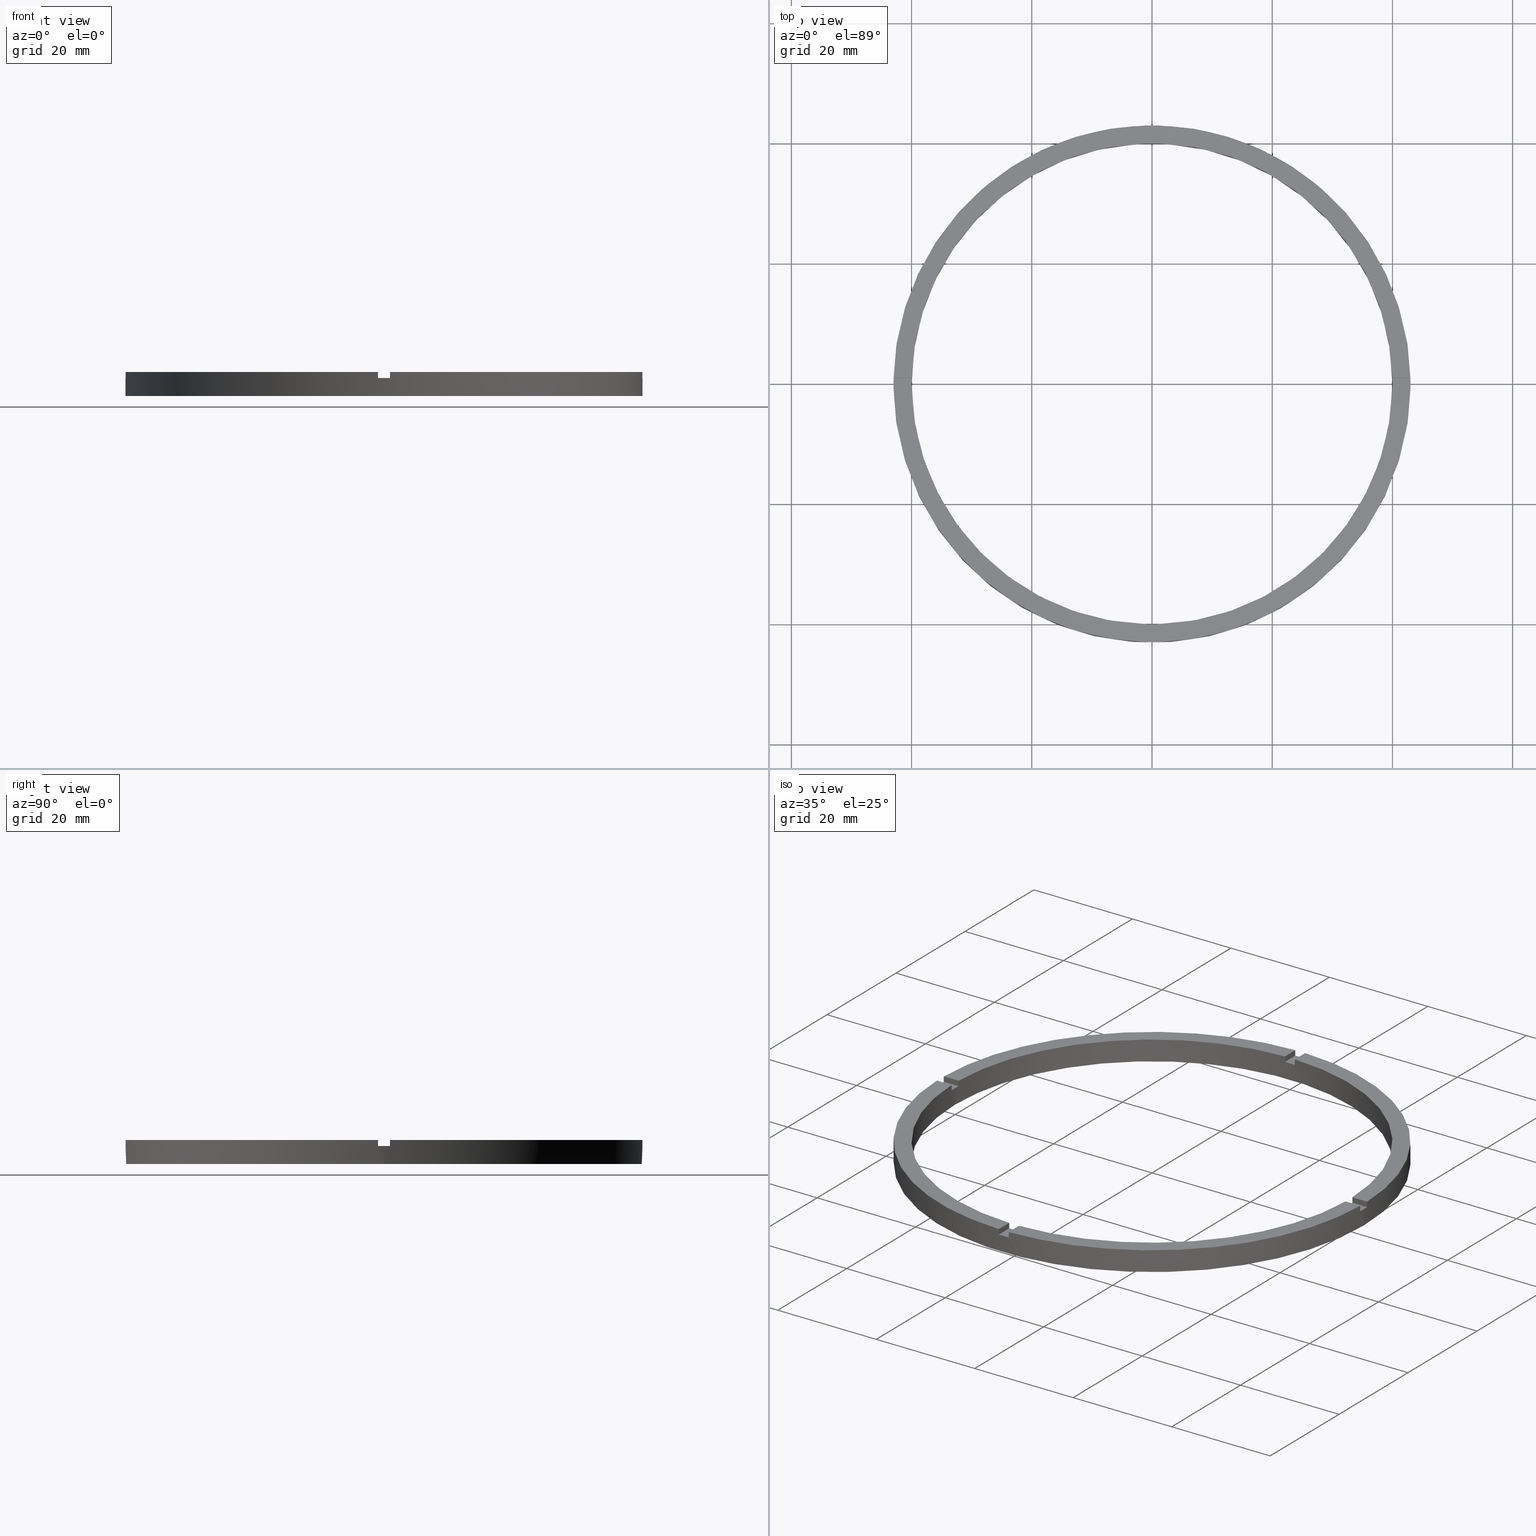
[diagram: canonical four-view strip — front | top / right | iso, engineering-drawing reading convention]
A machine part, canonical four-view strip (front | top / right | iso — engineering-drawing reading convention). The complete STEP part file that produces these views, byte-faithful:
ISO-10303-21;
HEADER;
FILE_DESCRIPTION (( 'STEP AP203' ),
    '1' );
FILE_NAME ('514176.step',
    '2024-12-26T02:44:57',
    ( 'MSI' ),
    ( '' ),
    'SwSTEP 2.0',
    'SolidWorks 2020',
    '' );
FILE_SCHEMA (( 'CONFIG_CONTROL_DESIGN' ));
ENDSEC;

DATA;
#1 = PERSON_AND_ORGANIZATION ( #390, #523 ) ;
#2 = ORIENTED_EDGE ( 'NONE', *, *, #142, .T. ) ;
#3 = APPROVAL_STATUS ( 'not_yet_approved' ) ;
#4 = VERTEX_POINT ( 'NONE', #494 ) ;
#5 = AXIS2_PLACEMENT_3D ( 'NONE', #260, #135, #87 ) ;
#6 = APPROVAL_PERSON_ORGANIZATION ( #1, #676, #672 ) ;
#7 = EDGE_CURVE ( 'NONE', #349, #636, #596, .T. ) ;
#8 = ORIENTED_EDGE ( 'NONE', *, *, #49, .T. ) ;
#9 = CC_DESIGN_DATE_AND_TIME_ASSIGNMENT ( #273, #326, ( #564 ) ) ;
#10 = APPROVAL_DATE_TIME ( #271, #676 ) ;
#11 = ORIENTED_EDGE ( 'NONE', *, *, #387, .T. ) ;
#12 = CARTESIAN_POINT ( 'NONE',  ( 32.99999999999997158, -1.000000000000157208, 3.000000000000000000 ) ) ;
#13 = ORIENTED_EDGE ( 'NONE', *, *, #269, .T. ) ;
#14 = DIRECTION ( 'NONE',  ( 0.000000000000000000, 0.000000000000000000, 1.000000000000000000 ) ) ;
#15 = EDGE_LOOP ( 'NONE', ( #719, #511 ) ) ;
#16 = CIRCLE ( 'NONE', #645, 40.00000000000000000 ) ;
#17 = AXIS2_PLACEMENT_3D ( 'NONE', #772, #464, #77 ) ;
#18 = VECTOR ( 'NONE', #534, 1000.000000000000000 ) ;
#19 = CIRCLE ( 'NONE', #274, 40.00000000000000000 ) ;
#20 = DESIGN_CONTEXT ( 'detailed design', #435, 'design' ) ;
#21 = CARTESIAN_POINT ( 'NONE',  ( 32.99999999999997158, -1.000000000000157208, 4.000000000000000000 ) ) ;
#22 = CIRCLE ( 'NONE', #212, 42.99999999999998579 ) ;
#23 = CARTESIAN_POINT ( 'NONE',  ( 0.000000000000000000, 0.000000000000000000, 0.000000000000000000 ) ) ;
#24 = EDGE_LOOP ( 'NONE', ( #275, #700 ) ) ;
#25 = FACE_OUTER_BOUND ( 'NONE', #268, .T. ) ;
#26 = VERTEX_POINT ( 'NONE', #139 ) ;
#27 = EDGE_CURVE ( 'NONE', #91, #546, #38, .T. ) ;
#28 = CARTESIAN_POINT ( 'NONE',  ( 0.000000000000000000, 0.000000000000000000, 3.000000000000000000 ) ) ;
#29 = CIRCLE ( 'NONE', #515, 42.99999999999998579 ) ;
#30 = DATE_TIME_ROLE ( 'creation_date' ) ;
#31 = ORIENTED_EDGE ( 'NONE', *, *, #438, .T. ) ;
#32 = AXIS2_PLACEMENT_3D ( 'NONE', #557, #453, #159 ) ;
#33 = FACE_OUTER_BOUND ( 'NONE', #554, .T. ) ;
#34 = ORIENTED_EDGE ( 'NONE', *, *, #679, .F. ) ;
#35 = ORIENTED_EDGE ( 'NONE', *, *, #455, .F. ) ;
#36 = VECTOR ( 'NONE', #108, 1000.000000000000000 ) ;
#37 = LINE ( 'NONE', #610, #40 ) ;
#38 = LINE ( 'NONE', #647, #60 ) ;
#39 = CIRCLE ( 'NONE', #17, 40.00000000000000000 ) ;
#40 = VECTOR ( 'NONE', #615, 1000.000000000000000 ) ;
#41 = VERTEX_POINT ( 'NONE', #431 ) ;
#42 = FACE_OUTER_BOUND ( 'NONE', #695, .T. ) ;
#43 = VECTOR ( 'NONE', #657, 1000.000000000000000 ) ;
#44 = FACE_OUTER_BOUND ( 'NONE', #283, .T. ) ;
#45 = LINE ( 'NONE', #739, #577 ) ;
#46 = ADVANCED_FACE ( 'NONE', ( #44 ), #264, .T. ) ;
#47 = DIRECTION ( 'NONE',  ( 0.000000000000000000, 0.000000000000000000, 1.000000000000000000 ) ) ;
#48 = CIRCLE ( 'NONE', #403, 42.99999999999998579 ) ;
#49 = EDGE_CURVE ( 'NONE', #522, #262, #579, .T. ) ;
#50 = CARTESIAN_POINT ( 'NONE',  ( 0.9999999999999740208, 32.99999999999997868, 3.000000000000000000 ) ) ;
#51 = CYLINDRICAL_SURFACE ( 'NONE', #437, 42.99999999999998579 ) ;
#52 = DIRECTION ( 'NONE',  ( 0.000000000000000000, 0.000000000000000000, 1.000000000000000000 ) ) ;
#53 = FACE_OUTER_BOUND ( 'NONE', #632, .T. ) ;
#54 = CIRCLE ( 'NONE', #562, 40.00000000000000000 ) ;
#55 = PLANE ( 'NONE',  #369 ) ;
#56 = CYLINDRICAL_SURFACE ( 'NONE', #616, 42.99999999999998579 ) ;
#57 = ORIENTED_EDGE ( 'NONE', *, *, #78, .T. ) ;
#58 = EDGE_LOOP ( 'NONE', ( #221, #231, #720, #573 ) ) ;
#59 = LINE ( 'NONE', #625, #586 ) ;
#60 = VECTOR ( 'NONE', #173, 1000.000000000000000 ) ;
#61 = VECTOR ( 'NONE', #771, 1000.000000000000000 ) ;
#62 = DIRECTION ( 'NONE',  ( 0.000000000000000000, 0.000000000000000000, 1.000000000000000000 ) ) ;
#63 = CARTESIAN_POINT ( 'NONE',  ( 42.98837052040934026, 0.9999999999998434586, 4.000000000000000000 ) ) ;
#64 = AXIS2_PLACEMENT_3D ( 'NONE', #354, #164, #371 ) ;
#65 = ORIENTED_EDGE ( 'NONE', *, *, #116, .F. ) ;
#66 = CC_DESIGN_SECURITY_CLASSIFICATION ( #564, ( #409 ) ) ;
#67 = VECTOR ( 'NONE', #216, 1000.000000000000000 ) ;
#68 = LINE ( 'NONE', #662, #67 ) ;
#69 = CARTESIAN_POINT ( 'NONE',  ( 0.000000000000000000, 0.000000000000000000, 0.000000000000000000 ) ) ;
#70 = DIRECTION ( 'NONE',  ( -0.000000000000000000, -0.000000000000000000, -1.000000000000000000 ) ) ;
#71 = PLANE ( 'NONE',  #471 ) ;
#72 = LINE ( 'NONE', #624, #312 ) ;
#73 = FACE_OUTER_BOUND ( 'NONE', #524, .T. ) ;
#74 = AXIS2_PLACEMENT_3D ( 'NONE', #28, #401, #440 ) ;
#75 = EDGE_CURVE ( 'NONE', #499, #636, #582, .T. ) ;
#76 = VECTOR ( 'NONE', #360, 1000.000000000000000 ) ;
#77 = DIRECTION ( 'NONE',  ( 1.000000000000000000, 0.000000000000000000, 0.000000000000000000 ) ) ;
#78 = EDGE_CURVE ( 'NONE', #246, #109, #601, .T. ) ;
#79 = VECTOR ( 'NONE', #153, 1000.000000000000000 ) ;
#80 = FACE_OUTER_BOUND ( 'NONE', #765, .T. ) ;
#81 = LINE ( 'NONE', #83, #332 ) ;
#82 = VECTOR ( 'NONE', #653, 1000.000000000000000 ) ;
#83 = CARTESIAN_POINT ( 'NONE',  ( -40.00000000000000000, 0.000000000000000000, 4.000000000000000000 ) ) ;
#84 = LINE ( 'NONE', #162, #82 ) ;
#85 = EDGE_CURVE ( 'NONE', #4, #773, #608, .T. ) ;
#86 = PLANE ( 'NONE',  #110 ) ;
#87 = DIRECTION ( 'NONE',  ( 1.000000000000000000, 0.000000000000000000, -0.000000000000000000 ) ) ;
#88 = VERTEX_POINT ( 'NONE', #478 ) ;
#89 = CARTESIAN_POINT ( 'NONE',  ( 39.98749804626441318, 0.9999999999998432365, 4.000000000000000000 ) ) ;
#90 = UNCERTAINTY_MEASURE_WITH_UNIT (LENGTH_MEASURE( 1.000000000000000082E-05 ), #253, 'distance_accuracy_value', 'NONE');
#91 = VERTEX_POINT ( 'NONE', #571 ) ;
#92 =( NAMED_UNIT ( * ) SI_UNIT ( $, .STERADIAN. ) SOLID_ANGLE_UNIT ( ) );
#93 = VERTEX_POINT ( 'NONE', #637 ) ;
#94 = EDGE_CURVE ( 'NONE', #91, #522, #330, .T. ) ;
#95 = ORIENTED_EDGE ( 'NONE', *, *, #485, .T. ) ;
#96 = ORIENTED_EDGE ( 'NONE', *, *, #617, .F. ) ;
#97 = ORIENTED_EDGE ( 'NONE', *, *, #552, .F. ) ;
#98 = CARTESIAN_POINT ( 'NONE',  ( -39.98749804626441318, -1.000000000000028644, 3.000000000000000000 ) ) ;
#99 = CC_DESIGN_PERSON_AND_ORGANIZATION_ASSIGNMENT ( #248, #593, ( #168 ) ) ;
#100 = AXIS2_PLACEMENT_3D ( 'NONE', #527, #424, #420 ) ;
#101 = CC_DESIGN_PERSON_AND_ORGANIZATION_ASSIGNMENT ( #769, #583, ( #409 ) ) ;
#102 = ORIENTED_EDGE ( 'NONE', *, *, #643, .T. ) ;
#103 = ADVANCED_FACE ( 'NONE', ( #80 ), #363, .T. ) ;
#104 = DIRECTION ( 'NONE',  ( 0.000000000000000000, 0.000000000000000000, 1.000000000000000000 ) ) ;
#105 = VERTEX_POINT ( 'NONE', #611 ) ;
#106 = PLANE ( 'NONE',  #5 ) ;
#107 = CARTESIAN_POINT ( 'NONE',  ( 42.98837052040933315, -1.000000000000156541, 4.000000000000000000 ) ) ;
#108 = DIRECTION ( 'NONE',  ( -0.000000000000000000, -0.000000000000000000, -1.000000000000000000 ) ) ;
#109 = VERTEX_POINT ( 'NONE', #381 ) ;
#110 = AXIS2_PLACEMENT_3D ( 'NONE', #311, #469, #628 ) ;
#111 = CARTESIAN_POINT ( 'NONE',  ( 0.000000000000000000, 0.000000000000000000, 4.000000000000000000 ) ) ;
#112 = DIRECTION ( 'NONE',  ( 1.000000000000000000, 0.000000000000000000, 0.000000000000000000 ) ) ;
#113 = DIRECTION ( 'NONE',  ( 0.000000000000000000, 1.000000000000000000, 0.000000000000000000 ) ) ;
#114 = EDGE_CURVE ( 'NONE', #209, #516, #81, .T. ) ;
#115 = DIRECTION ( 'NONE',  ( 0.000000000000000000, 0.000000000000000000, 1.000000000000000000 ) ) ;
#116 = EDGE_CURVE ( 'NONE', #91, #88, #605, .T. ) ;
#117 = DIRECTION ( 'NONE',  ( 1.000000000000000000, 0.000000000000000000, 0.000000000000000000 ) ) ;
#118 = DIRECTION ( 'NONE',  ( 0.000000000000000000, -0.000000000000000000, 1.000000000000000000 ) ) ;
#119 = DIRECTION ( 'NONE',  ( -1.000000000000000000, -1.301042606982605074E-16, 0.000000000000000000 ) ) ;
#120 = DIRECTION ( 'NONE',  ( 0.000000000000000000, 0.000000000000000000, 1.000000000000000000 ) ) ;
#121 = CARTESIAN_POINT ( 'NONE',  ( 0.000000000000000000, 0.000000000000000000, 4.000000000000000000 ) ) ;
#122 = DIRECTION ( 'NONE',  ( -0.000000000000000000, -0.000000000000000000, -1.000000000000000000 ) ) ;
#123 = DIRECTION ( 'NONE',  ( -0.000000000000000000, -0.000000000000000000, -1.000000000000000000 ) ) ;
#124 = AXIS2_PLACEMENT_3D ( 'NONE', #69, #120, #117 ) ;
#125 = DIRECTION ( 'NONE',  ( -1.000000000000000000, -1.951563910473907735E-16, 0.000000000000000000 ) ) ;
#126 = AXIS2_PLACEMENT_3D ( 'NONE', #717, #185, #277 ) ;
#127 = DIRECTION ( 'NONE',  ( 1.000000000000000000, 0.000000000000000000, -0.000000000000000000 ) ) ;
#128 = LINE ( 'NONE', #518, #129 ) ;
#129 = VECTOR ( 'NONE', #104, 1000.000000000000000 ) ;
#130 = APPLICATION_PROTOCOL_DEFINITION ( 'international standard', 'config_control_design', 1994, #435 ) ;
#131 = EDGE_CURVE ( 'NONE', #4, #722, #84, .T. ) ;
#132 = AXIS2_PLACEMENT_3D ( 'NONE', #678, #763, #199 ) ;
#133 = EDGE_CURVE ( 'NONE', #109, #749, #606, .T. ) ;
#134 = DIRECTION ( 'NONE',  ( 0.000000000000000000, 0.000000000000000000, 1.000000000000000000 ) ) ;
#135 = DIRECTION ( 'NONE',  ( 0.000000000000000000, -0.000000000000000000, 1.000000000000000000 ) ) ;
#136 = EDGE_CURVE ( 'NONE', #630, #538, #54, .T. ) ;
#137 = DIRECTION ( 'NONE',  ( 1.000000000000000000, 0.000000000000000000, -0.000000000000000000 ) ) ;
#138 = DIRECTION ( 'NONE',  ( 1.000000000000000000, 0.000000000000000000, 0.000000000000000000 ) ) ;
#139 = CARTESIAN_POINT ( 'NONE',  ( -1.000000000000158540, -42.98837052040933315, 3.000000000000000000 ) ) ;
#140 = CARTESIAN_POINT ( 'NONE',  ( -42.98837052040933315, -1.000000000000029310, 3.000000000000000000 ) ) ;
#141 =( GEOMETRIC_REPRESENTATION_CONTEXT ( 3 ) GLOBAL_UNCERTAINTY_ASSIGNED_CONTEXT ( ( #90 ) ) GLOBAL_UNIT_ASSIGNED_CONTEXT ( ( #253, #392, #92 ) ) REPRESENTATION_CONTEXT ( 'NONE', 'WORKASPACE' ) );
#142 = EDGE_CURVE ( 'NONE', #538, #178, #558, .T. ) ;
#143 = CC_DESIGN_PERSON_AND_ORGANIZATION_ASSIGNMENT ( #220, #711, ( #564 ) ) ;
#144 = DIRECTION ( 'NONE',  ( 1.000000000000000000, 0.000000000000000000, 0.000000000000000000 ) ) ;
#145 = DIRECTION ( 'NONE',  ( -1.301042606982605074E-16, 1.000000000000000000, -0.000000000000000000 ) ) ;
#146 = DIRECTION ( 'NONE',  ( 1.000000000000000000, 0.000000000000000000, -0.000000000000000000 ) ) ;
#147 = ADVANCED_FACE ( 'NONE', ( #581 ), #71, .F. ) ;
#148 = AXIS2_PLACEMENT_3D ( 'NONE', #317, #669, #701 ) ;
#149 = PLANE ( 'NONE',  #348 ) ;
#150 = LINE ( 'NONE', #21, #480 ) ;
#151 = DIRECTION ( 'NONE',  ( 0.000000000000000000, 0.000000000000000000, 1.000000000000000000 ) ) ;
#152 = CARTESIAN_POINT ( 'NONE',  ( 0.000000000000000000, 0.000000000000000000, 0.000000000000000000 ) ) ;
#153 = DIRECTION ( 'NONE',  ( 0.000000000000000000, 0.000000000000000000, 1.000000000000000000 ) ) ;
#154 = DIRECTION ( 'NONE',  ( 1.000000000000000000, 0.000000000000000000, 0.000000000000000000 ) ) ;
#155 = EDGE_CURVE ( 'NONE', #520, #209, #575, .T. ) ;
#156 = CARTESIAN_POINT ( 'NONE',  ( -39.98749804626441318, 0.9999999999999713562, 4.000000000000000000 ) ) ;
#157 = ADVANCED_FACE ( 'NONE', ( #53 ), #55, .T. ) ;
#158 = DIRECTION ( 'NONE',  ( -0.000000000000000000, -0.000000000000000000, -1.000000000000000000 ) ) ;
#159 = DIRECTION ( 'NONE',  ( 1.000000000000000000, 0.000000000000000000, 0.000000000000000000 ) ) ;
#160 = ADVANCED_FACE ( 'NONE', ( #304, #293 ), #166, .F. ) ;
#161 = CARTESIAN_POINT ( 'NONE',  ( -42.99999999999998579, 0.000000000000000000, 3.000000000000000000 ) ) ;
#162 = CARTESIAN_POINT ( 'NONE',  ( -39.98749804626441318, -1.000000000000028644, 4.000000000000000000 ) ) ;
#163 = EDGE_CURVE ( 'NONE', #249, #749, #296, .T. ) ;
#164 = DIRECTION ( 'NONE',  ( -0.000000000000000000, 0.000000000000000000, 1.000000000000000000 ) ) ;
#165 = DIRECTION ( 'NONE',  ( 0.000000000000000000, 0.000000000000000000, -1.000000000000000000 ) ) ;
#166 = PLANE ( 'NONE',  #572 ) ;
#167 = PLANE ( 'NONE',  #660 ) ;
#168 = PRODUCT_DEFINITION ( 'δ֪', '', #409, #20 ) ;
#169 = DIRECTION ( 'NONE',  ( -0.000000000000000000, -0.000000000000000000, -1.000000000000000000 ) ) ;
#170 = APPLICATION_CONTEXT ( 'configuration controlled 3d designs of mechanical parts and assemblies' ) ;
#171 = AXIS2_PLACEMENT_3D ( 'NONE', #685, #747, #537 ) ;
#172 = CARTESIAN_POINT ( 'NONE',  ( -1.000000000000159872, -33.00000000000016342, 3.000000000000000000 ) ) ;
#173 = DIRECTION ( 'NONE',  ( -0.000000000000000000, -0.000000000000000000, -1.000000000000000000 ) ) ;
#174 = MECHANICAL_CONTEXT ( 'NONE', #170, 'mechanical' ) ;
#175 = EDGE_CURVE ( 'NONE', #202, #517, #565, .T. ) ;
#176 = VERTEX_POINT ( 'NONE', #107 ) ;
#177 = CARTESIAN_POINT ( 'NONE',  ( -1.000000000000158984, -39.98749804626440607, 4.000000000000000000 ) ) ;
#178 = VERTEX_POINT ( 'NONE', #184 ) ;
#179 = PLANE ( 'NONE',  #383 ) ;
#180 = VECTOR ( 'NONE', #607, 1000.000000000000000 ) ;
#181 = DIRECTION ( 'NONE',  ( -1.000000000000000000, 0.000000000000000000, 0.000000000000000000 ) ) ;
#182 = EDGE_CURVE ( 'NONE', #520, #241, #37, .T. ) ;
#183 = VERTEX_POINT ( 'NONE', #503 ) ;
#184 = CARTESIAN_POINT ( 'NONE',  ( 40.00000000000000000, 4.898587196589413026E-15, 0.000000000000000000 ) ) ;
#185 = DIRECTION ( 'NONE',  ( 0.000000000000000000, 0.000000000000000000, 1.000000000000000000 ) ) ;
#186 = CARTESIAN_POINT ( 'NONE',  ( -40.00000000000000000, 0.000000000000000000, 0.000000000000000000 ) ) ;
#187 = LINE ( 'NONE', #294, #188 ) ;
#188 = VECTOR ( 'NONE', #158, 1000.000000000000000 ) ;
#189 = DIRECTION ( 'NONE',  ( -0.000000000000000000, -0.000000000000000000, -1.000000000000000000 ) ) ;
#190 = VERTEX_POINT ( 'NONE', #688 ) ;
#191 = ORIENTED_EDGE ( 'NONE', *, *, #724, .F. ) ;
#192 = ADVANCED_FACE ( 'NONE', ( #555 ), #51, .T. ) ;
#193 = CARTESIAN_POINT ( 'NONE',  ( 0.9999999999999740208, 42.98837052040934026, 3.000000000000000000 ) ) ;
#194 = CIRCLE ( 'NONE', #740, 40.00000000000000000 ) ;
#195 = CC_DESIGN_PERSON_AND_ORGANIZATION_ASSIGNMENT ( #777, #488, ( #358 ) ) ;
#196 = ORIENTED_EDGE ( 'NONE', *, *, #614, .F. ) ;
#197 = ORIENTED_EDGE ( 'NONE', *, *, #114, .T. ) ;
#198 = DIRECTION ( 'NONE',  ( 0.000000000000000000, 0.000000000000000000, 1.000000000000000000 ) ) ;
#199 = DIRECTION ( 'NONE',  ( 1.000000000000000000, 0.000000000000000000, 0.000000000000000000 ) ) ;
#200 = DIRECTION ( 'NONE',  ( -0.000000000000000000, -1.000000000000000000, -0.000000000000000000 ) ) ;
#201 = ORIENTED_EDGE ( 'NONE', *, *, #131, .T. ) ;
#202 = VERTEX_POINT ( 'NONE', #648 ) ;
#203 = ORIENTED_EDGE ( 'NONE', *, *, #713, .T. ) ;
#204 = CARTESIAN_POINT ( 'NONE',  ( 0.000000000000000000, 0.000000000000000000, 4.000000000000000000 ) ) ;
#205 = ORIENTED_EDGE ( 'NONE', *, *, #671, .F. ) ;
#206 = EDGE_CURVE ( 'NONE', #209, #722, #16, .T. ) ;
#207 = APPROVAL_PERSON_ORGANIZATION ( #767, #341, #667 ) ;
#208 = ORIENTED_EDGE ( 'NONE', *, *, #133, .F. ) ;
#209 = VERTEX_POINT ( 'NONE', #281 ) ;
#210 = LINE ( 'NONE', #388, #237 ) ;
#211 = ORIENTED_EDGE ( 'NONE', *, *, #163, .F. ) ;
#212 = AXIS2_PLACEMENT_3D ( 'NONE', #411, #451, #544 ) ;
#213 = FACE_OUTER_BOUND ( 'NONE', #510, .T. ) ;
#214 = ORIENTED_EDGE ( 'NONE', *, *, #75, .T. ) ;
#215 = CARTESIAN_POINT ( 'NONE',  ( 32.99999999999997158, -1.000000000000157208, 3.000000000000000000 ) ) ;
#216 = DIRECTION ( 'NONE',  ( 0.000000000000000000, 0.000000000000000000, 1.000000000000000000 ) ) ;
#217 = ORIENTED_EDGE ( 'NONE', *, *, #724, .T. ) ;
#218 = LINE ( 'NONE', #50, #497 ) ;
#219 = CALENDAR_DATE ( 2024, 26, 12 ) ;
#220 = PERSON_AND_ORGANIZATION ( #390, #523 ) ;
#221 = ORIENTED_EDGE ( 'NONE', *, *, #778, .F. ) ;
#222 = DIRECTION ( 'NONE',  ( 6.505213034913025371E-17, -1.000000000000000000, 0.000000000000000000 ) ) ;
#223 = EDGE_CURVE ( 'NONE', #636, #499, #280, .T. ) ;
#224 = ORIENTED_EDGE ( 'NONE', *, *, #428, .F. ) ;
#225 = DIRECTION ( 'NONE',  ( 0.000000000000000000, 0.000000000000000000, 1.000000000000000000 ) ) ;
#226 = CALENDAR_DATE ( 2024, 26, 12 ) ;
#227 = ORIENTED_EDGE ( 'NONE', *, *, #533, .F. ) ;
#228 = VERTEX_POINT ( 'NONE', #63 ) ;
#229 = LINE ( 'NONE', #644, #519 ) ;
#230 = ORIENTED_EDGE ( 'NONE', *, *, #595, .F. ) ;
#231 = ORIENTED_EDGE ( 'NONE', *, *, #595, .T. ) ;
#232 = DIRECTION ( 'NONE',  ( -1.000000000000000000, 0.000000000000000000, 0.000000000000000000 ) ) ;
#233 = CIRCLE ( 'NONE', #64, 40.00000000000000000 ) ;
#234 = ORIENTED_EDGE ( 'NONE', *, *, #308, .F. ) ;
#235 = ORIENTED_EDGE ( 'NONE', *, *, #7, .F. ) ;
#236 = LOCAL_TIME ( 10, 44, 57.00000000000000000, #779 ) ;
#237 = VECTOR ( 'NONE', #704, 1000.000000000000000 ) ;
#238 = ORIENTED_EDGE ( 'NONE', *, *, #675, .T. ) ;
#239 = VERTEX_POINT ( 'NONE', #350 ) ;
#240 = PERSON_AND_ORGANIZATION ( #390, #523 ) ;
#241 = VERTEX_POINT ( 'NONE', #446 ) ;
#242 = EDGE_CURVE ( 'NONE', #202, #93, #19, .T. ) ;
#243 = EDGE_LOOP ( 'NONE', ( #34, #346, #542, #191 ) ) ;
#244 = LOCAL_TIME ( 10, 44, 57.00000000000000000, #731 ) ;
#245 = APPROVAL_STATUS ( 'not_yet_approved' ) ;
#246 = VERTEX_POINT ( 'NONE', #602 ) ;
#247 = EDGE_LOOP ( 'NONE', ( #547, #532, #530, #613, #549, #31 ) ) ;
#248 = PERSON_AND_ORGANIZATION ( #390, #523 ) ;
#249 = VERTEX_POINT ( 'NONE', #646 ) ;
#250 = EDGE_LOOP ( 'NONE', ( #550, #710, #362, #343 ) ) ;
#251 = LINE ( 'NONE', #172, #758 ) ;
#252 = VECTOR ( 'NONE', #14, 1000.000000000000000 ) ;
#253 =( LENGTH_UNIT ( ) NAMED_UNIT ( * ) SI_UNIT ( .MILLI., .METRE. ) );
#254 = ORIENTED_EDGE ( 'NONE', *, *, #418, .F. ) ;
#255 = AXIS2_PLACEMENT_3D ( 'NONE', #323, #427, #566 ) ;
#256 = ORIENTED_EDGE ( 'NONE', *, *, #85, .T. ) ;
#257 = AXIS2_PLACEMENT_3D ( 'NONE', #649, #47, #112 ) ;
#258 = COORDINATED_UNIVERSAL_TIME_OFFSET ( 8, 0, .AHEAD. ) ;
#259 = ORIENTED_EDGE ( 'NONE', *, *, #136, .T. ) ;
#260 = CARTESIAN_POINT ( 'NONE',  ( 0.000000000000000000, 0.000000000000000000, 3.000000000000000000 ) ) ;
#261 = ORIENTED_EDGE ( 'NONE', *, *, #466, .F. ) ;
#262 = VERTEX_POINT ( 'NONE', #156 ) ;
#263 = ORIENTED_EDGE ( 'NONE', *, *, #455, .T. ) ;
#264 = PLANE ( 'NONE',  #744 ) ;
#265 = CALENDAR_DATE ( 2024, 26, 12 ) ;
#266 = ORIENTED_EDGE ( 'NONE', *, *, #27, .T. ) ;
#267 = DIRECTION ( 'NONE',  ( 1.000000000000000000, 0.000000000000000000, -0.000000000000000000 ) ) ;
#268 = EDGE_LOOP ( 'NONE', ( #196, #356, #11, #457, #263, #702, #486, #353, #536, #359, #498, #272 ) ) ;
#269 = EDGE_CURVE ( 'NONE', #246, #176, #282, .T. ) ;
#270 = VERTEX_POINT ( 'NONE', #370 ) ;
#271 = DATE_AND_TIME ( #540, #782 ) ;
#272 = ORIENTED_EDGE ( 'NONE', *, *, #223, .T. ) ;
#273 = DATE_AND_TIME ( #265, #783 ) ;
#274 = AXIS2_PLACEMENT_3D ( 'NONE', #721, #118, #589 ) ;
#275 = ORIENTED_EDGE ( 'NONE', *, *, #425, .T. ) ;
#276 = EDGE_CURVE ( 'NONE', #770, #286, #22, .T. ) ;
#277 = DIRECTION ( 'NONE',  ( 1.000000000000000000, 0.000000000000000000, 0.000000000000000000 ) ) ;
#278 = ORIENTED_EDGE ( 'NONE', *, *, #569, .T. ) ;
#279 = CYLINDRICAL_SURFACE ( 'NONE', #461, 40.00000000000000000 ) ;
#280 = CIRCLE ( 'NONE', #417, 42.99999999999998579 ) ;
#281 = CARTESIAN_POINT ( 'NONE',  ( -40.00000000000000000, 0.000000000000000000, 3.000000000000000000 ) ) ;
#282 = CIRCLE ( 'NONE', #132, 42.99999999999998579 ) ;
#283 = EDGE_LOOP ( 'NONE', ( #551, #746, #97, #492 ) ) ;
#284 = CARTESIAN_POINT ( 'NONE',  ( 0.9999999999999740208, 32.99999999999997868, 4.000000000000000000 ) ) ;
#285 = CARTESIAN_POINT ( 'NONE',  ( -33.00000000000017053, -1.000000000000027311, 3.000000000000000000 ) ) ;
#286 = VERTEX_POINT ( 'NONE', #377 ) ;
#287 = LINE ( 'NONE', #450, #559 ) ;
#288 = DIRECTION ( 'NONE',  ( 0.000000000000000000, 0.000000000000000000, 1.000000000000000000 ) ) ;
#289 = CARTESIAN_POINT ( 'NONE',  ( 0.000000000000000000, 0.000000000000000000, 3.000000000000000000 ) ) ;
#290 = DIRECTION ( 'NONE',  ( 1.000000000000000000, 0.000000000000000000, 0.000000000000000000 ) ) ;
#291 = DIRECTION ( 'NONE',  ( 1.000000000000000000, 0.000000000000000000, -0.000000000000000000 ) ) ;
#292 = CARTESIAN_POINT ( 'NONE',  ( 0.000000000000000000, 0.000000000000000000, 3.000000000000000000 ) ) ;
#293 = FACE_BOUND ( 'NONE', #24, .T. ) ;
#294 = CARTESIAN_POINT ( 'NONE',  ( -42.98837052040933315, -1.000000000000029310, 4.000000000000000000 ) ) ;
#295 = ORIENTED_EDGE ( 'NONE', *, *, #155, .F. ) ;
#296 = LINE ( 'NONE', #652, #18 ) ;
#297 = CYLINDRICAL_SURFACE ( 'NONE', #255, 40.00000000000000000 ) ;
#298 = LINE ( 'NONE', #751, #43 ) ;
#299 = DIRECTION ( 'NONE',  ( 0.000000000000000000, 0.000000000000000000, 1.000000000000000000 ) ) ;
#300 = LINE ( 'NONE', #89, #303 ) ;
#301 = CARTESIAN_POINT ( 'NONE',  ( 0.000000000000000000, 0.000000000000000000, 4.000000000000000000 ) ) ;
#302 = ADVANCED_FACE ( 'NONE', ( #25 ), #56, .T. ) ;
#303 = VECTOR ( 'NONE', #169, 1000.000000000000000 ) ;
#304 = FACE_OUTER_BOUND ( 'NONE', #15, .T. ) ;
#305 = CARTESIAN_POINT ( 'NONE',  ( 39.98749804626440607, -1.000000000000156763, 3.000000000000000000 ) ) ;
#306 = AXIS2_PLACEMENT_3D ( 'NONE', #204, #299, #414 ) ;
#307 = CARTESIAN_POINT ( 'NONE',  ( 0.000000000000000000, 0.000000000000000000, 4.000000000000000000 ) ) ;
#308 = EDGE_CURVE ( 'NONE', #630, #590, #68, .T. ) ;
#309 = ORIENTED_EDGE ( 'NONE', *, *, #650, .F. ) ;
#310 = CIRCLE ( 'NONE', #306, 42.99999999999998579 ) ;
#311 = CARTESIAN_POINT ( 'NONE',  ( 0.9999999999998402389, -33.00000000000016342, 3.000000000000000000 ) ) ;
#312 = VECTOR ( 'NONE', #656, 1000.000000000000000 ) ;
#313 = DIRECTION ( 'NONE',  ( 1.000000000000000000, 0.000000000000000000, -0.000000000000000000 ) ) ;
#314 = EDGE_LOOP ( 'NONE', ( #375, #635, #470, #459 ) ) ;
#315 = LINE ( 'NONE', #781, #327 ) ;
#316 = CIRCLE ( 'NONE', #124, 40.00000000000000000 ) ;
#317 = CARTESIAN_POINT ( 'NONE',  ( 0.000000000000000000, 0.000000000000000000, 3.000000000000000000 ) ) ;
#318 = DIRECTION ( 'NONE',  ( 1.301042606982605074E-16, -1.000000000000000000, 0.000000000000000000 ) ) ;
#319 = ORIENTED_EDGE ( 'NONE', *, *, #116, .T. ) ;
#320 = AXIS2_PLACEMENT_3D ( 'NONE', #307, #419, #467 ) ;
#321 = ORIENTED_EDGE ( 'NONE', *, *, #131, .F. ) ;
#322 = FACE_OUTER_BOUND ( 'NONE', #250, .T. ) ;
#323 = CARTESIAN_POINT ( 'NONE',  ( 0.000000000000000000, 0.000000000000000000, 4.000000000000000000 ) ) ;
#324 = ORIENTED_EDGE ( 'NONE', *, *, #182, .F. ) ;
#325 = FACE_OUTER_BOUND ( 'NONE', #703, .T. ) ;
#326 = DATE_TIME_ROLE ( 'classification_date' ) ;
#327 = VECTOR ( 'NONE', #125, 1000.000000000000000 ) ;
#328 = FACE_OUTER_BOUND ( 'NONE', #337, .T. ) ;
#329 = VECTOR ( 'NONE', #200, 1000.000000000000000 ) ;
#330 = LINE ( 'NONE', #708, #329 ) ;
#331 = APPLICATION_PROTOCOL_DEFINITION ( 'international standard', 'config_control_design', 1994, #170 ) ;
#332 = VECTOR ( 'NONE', #123, 1000.000000000000000 ) ;
#333 = MANIFOLD_SOLID_BREP ( '�г�-����1', #528 ) ;
#334 = VECTOR ( 'NONE', #145, 1000.000000000000000 ) ;
#335 = VECTOR ( 'NONE', #545, 1000.000000000000000 ) ;
#336 = CARTESIAN_POINT ( 'NONE',  ( 0.000000000000000000, 0.000000000000000000, 3.000000000000000000 ) ) ;
#337 = EDGE_LOOP ( 'NONE', ( #57, #473, #211, #35 ) ) ;
#338 = CARTESIAN_POINT ( 'NONE',  ( 0.000000000000000000, 0.000000000000000000, 3.000000000000000000 ) ) ;
#339 = DIRECTION ( 'NONE',  ( 0.000000000000000000, 0.000000000000000000, 1.000000000000000000 ) ) ;
#340 = DIRECTION ( 'NONE',  ( 1.000000000000000000, 6.505213034913025371E-17, 0.000000000000000000 ) ) ;
#341 = APPROVAL ( #3, 'δָ��' ) ;
#342 = APPROVAL_ROLE ( '' ) ;
#343 = ORIENTED_EDGE ( 'NONE', *, *, #387, .F. ) ;
#344 = ORIENTED_EDGE ( 'NONE', *, *, #367, .F. ) ;
#345 = ORIENTED_EDGE ( 'NONE', *, *, #384, .T. ) ;
#346 = ORIENTED_EDGE ( 'NONE', *, *, #175, .T. ) ;
#347 = DIRECTION ( 'NONE',  ( 0.000000000000000000, 0.000000000000000000, 1.000000000000000000 ) ) ;
#348 = AXIS2_PLACEMENT_3D ( 'NONE', #458, #119, #548 ) ;
#349 = VERTEX_POINT ( 'NONE', #161 ) ;
#350 = CARTESIAN_POINT ( 'NONE',  ( -42.98837052040933315, -1.000000000000029310, 4.000000000000000000 ) ) ;
#351 = EDGE_CURVE ( 'NONE', #41, #517, #592, .T. ) ;
#352 = CARTESIAN_POINT ( 'NONE',  ( 0.9999999999998402389, -33.00000000000016342, 4.000000000000000000 ) ) ;
#353 = ORIENTED_EDGE ( 'NONE', *, *, #627, .F. ) ;
#355 = CARTESIAN_POINT ( 'NONE',  ( 0.9999999999999740208, 39.98749804626441318, 4.000000000000000000 ) ) ;
#354 = CARTESIAN_POINT ( 'NONE',  ( 0.000000000000000000, 0.000000000000000000, 3.000000000000000000 ) ) ;
#356 = ORIENTED_EDGE ( 'NONE', *, *, #276, .F. ) ;
#357 = CARTESIAN_POINT ( 'NONE',  ( -1.000000000000159872, -33.00000000000016342, 4.000000000000000000 ) ) ;
#358 = PRODUCT ( '514176', '514176', '', ( #174 ) ) ;
#359 = ORIENTED_EDGE ( 'NONE', *, *, #661, .F. ) ;
#360 = DIRECTION ( 'NONE',  ( -1.000000000000000000, -6.505213034913025371E-17, -0.000000000000000000 ) ) ;
#361 = DIRECTION ( 'NONE',  ( 1.000000000000000000, 0.000000000000000000, 0.000000000000000000 ) ) ;
#362 = ORIENTED_EDGE ( 'NONE', *, *, #671, .T. ) ;
#363 = PLANE ( 'NONE',  #407 ) ;
#364 = ADVANCED_FACE ( 'NONE', ( #325 ), #380, .F. ) ;
#365 = CARTESIAN_POINT ( 'NONE',  ( -1.000000000000025979, 39.98749804626441318, 4.000000000000000000 ) ) ;
#366 = ORIENTED_EDGE ( 'NONE', *, *, #778, .T. ) ;
#367 = EDGE_CURVE ( 'NONE', #228, #408, #59, .T. ) ;
#368 = CARTESIAN_POINT ( 'NONE',  ( 32.99999999999997158, 0.9999999999998427924, 3.000000000000000000 ) ) ;
#369 = AXIS2_PLACEMENT_3D ( 'NONE', #684, #115, #127 ) ;
#370 = CARTESIAN_POINT ( 'NONE',  ( -1.000000000000158984, -39.98749804626440607, 3.000000000000000000 ) ) ;
#371 = DIRECTION ( 'NONE',  ( 1.000000000000000000, 0.000000000000000000, 0.000000000000000000 ) ) ;
#372 = CARTESIAN_POINT ( 'NONE',  ( 32.99999999999997158, 0.9999999999998427924, 3.000000000000000000 ) ) ;
#373 = ADVANCED_FACE ( 'NONE', ( #597 ), #619, .F. ) ;
#374 = DIRECTION ( 'NONE',  ( 1.000000000000000000, 0.000000000000000000, 0.000000000000000000 ) ) ;
#375 = ORIENTED_EDGE ( 'NONE', *, *, #94, .T. ) ;
#376 = ORIENTED_EDGE ( 'NONE', *, *, #175, .F. ) ;
#377 = CARTESIAN_POINT ( 'NONE',  ( 42.99999999999998579, 5.265981236333616104E-15, 3.000000000000000000 ) ) ;
#378 = CARTESIAN_POINT ( 'NONE',  ( 0.9999999999999740208, 32.99999999999997868, 3.000000000000000000 ) ) ;
#379 = CARTESIAN_POINT ( 'NONE',  ( 0.000000000000000000, 0.000000000000000000, 0.000000000000000000 ) ) ;
#380 = PLANE ( 'NONE',  #760 ) ;
#381 = CARTESIAN_POINT ( 'NONE',  ( 0.9999999999998411271, -39.98749804626441318, 4.000000000000000000 ) ) ;
#382 = ADVANCED_BREP_SHAPE_REPRESENTATION ( '514176', ( #333, #633 ), #141 ) ;
#383 = AXIS2_PLACEMENT_3D ( 'NONE', #398, #347, #397 ) ;
#384 = EDGE_CURVE ( 'NONE', #228, #41, #594, .T. ) ;
#385 = CC_DESIGN_APPROVAL ( #676, ( #564 ) ) ;
#386 = DIRECTION ( 'NONE',  ( 0.000000000000000000, 0.000000000000000000, 1.000000000000000000 ) ) ;
#387 = EDGE_CURVE ( 'NONE', #770, #176, #72, .T. ) ;
#388 = CARTESIAN_POINT ( 'NONE',  ( -33.00000000000017053, -1.000000000000027311, 3.000000000000000000 ) ) ;
#389 = CARTESIAN_POINT ( 'NONE',  ( 42.98837052040933315, -1.000000000000156541, 3.000000000000000000 ) ) ;
#390 = PERSON ( 'δָ��', 'δָ��', 'δָ��', ('δָ��'), ('δָ��'), ('δָ��') ) ;
#391 = EDGE_CURVE ( 'NONE', #262, #88, #315, .T. ) ;
#392 =( NAMED_UNIT ( * ) PLANE_ANGLE_UNIT ( ) SI_UNIT ( $, .RADIAN. ) );
#393 = ADVANCED_FACE ( 'NONE', ( #322 ), #750, .F. ) ;
#394 = CARTESIAN_POINT ( 'NONE',  ( 0.000000000000000000, 0.000000000000000000, 0.000000000000000000 ) ) ;
#395 = DIRECTION ( 'NONE',  ( 1.000000000000000000, 0.000000000000000000, 0.000000000000000000 ) ) ;
#396 = PLANE ( 'NONE',  #406 ) ;
#397 = DIRECTION ( 'NONE',  ( 1.000000000000000000, 0.000000000000000000, -0.000000000000000000 ) ) ;
#398 = CARTESIAN_POINT ( 'NONE',  ( 0.000000000000000000, 0.000000000000000000, 3.000000000000000000 ) ) ;
#399 = CIRCLE ( 'NONE', #74, 42.99999999999998579 ) ;
#400 = ADVANCED_FACE ( 'NONE', ( #328 ), #86, .F. ) ;
#401 = DIRECTION ( 'NONE',  ( 0.000000000000000000, 0.000000000000000000, 1.000000000000000000 ) ) ;
#402 = DIRECTION ( 'NONE',  ( -1.000000000000000000, -6.505213034913025371E-17, 0.000000000000000000 ) ) ;
#403 = AXIS2_PLACEMENT_3D ( 'NONE', #609, #198, #290 ) ;
#404 = CARTESIAN_POINT ( 'NONE',  ( -42.99999999999998579, 0.000000000000000000, 0.000000000000000000 ) ) ;
#405 = DIRECTION ( 'NONE',  ( 0.000000000000000000, 0.000000000000000000, 1.000000000000000000 ) ) ;
#406 = AXIS2_PLACEMENT_3D ( 'NONE', #507, #591, #146 ) ;
#407 = AXIS2_PLACEMENT_3D ( 'NONE', #447, #664, #313 ) ;
#408 = VERTEX_POINT ( 'NONE', #697 ) ;
#409 = PRODUCT_DEFINITION_FORMATION_WITH_SPECIFIED_SOURCE ( '�κ�', '', #358, .NOT_KNOWN. ) ;
#410 = CARTESIAN_POINT ( 'NONE',  ( 40.00000000000000000, 4.898587196589413026E-15, 3.000000000000000000 ) ) ;
#411 = CARTESIAN_POINT ( 'NONE',  ( 0.000000000000000000, 0.000000000000000000, 3.000000000000000000 ) ) ;
#412 = DIRECTION ( 'NONE',  ( -6.505213034913025371E-17, 1.000000000000000000, 0.000000000000000000 ) ) ;
#413 = CARTESIAN_POINT ( 'NONE',  ( 42.99999999999998579, 5.265981236333616104E-15, 0.000000000000000000 ) ) ;
#414 = DIRECTION ( 'NONE',  ( 1.000000000000000000, 0.000000000000000000, 0.000000000000000000 ) ) ;
#415 = CARTESIAN_POINT ( 'NONE',  ( -1.000000000000158984, -39.98749804626440607, 4.000000000000000000 ) ) ;
#416 = ADVANCED_FACE ( 'NONE', ( #73 ), #665, .F. ) ;
#417 = AXIS2_PLACEMENT_3D ( 'NONE', #394, #288, #144 ) ;
#418 = EDGE_CURVE ( 'NONE', #408, #183, #598, .T. ) ;
#419 = DIRECTION ( 'NONE',  ( 0.000000000000000000, 0.000000000000000000, 1.000000000000000000 ) ) ;
#420 = DIRECTION ( 'NONE',  ( 1.000000000000000000, 0.000000000000000000, 0.000000000000000000 ) ) ;
#421 = DIRECTION ( 'NONE',  ( 1.000000000000000000, 6.505213034913025371E-17, 0.000000000000000000 ) ) ;
#422 = DIRECTION ( 'NONE',  ( 0.000000000000000000, 0.000000000000000000, 1.000000000000000000 ) ) ;
#423 = DIRECTION ( 'NONE',  ( -1.951563910473907735E-16, 1.000000000000000000, 0.000000000000000000 ) ) ;
#424 = DIRECTION ( 'NONE',  ( 0.000000000000000000, 0.000000000000000000, 1.000000000000000000 ) ) ;
#425 = EDGE_CURVE ( 'NONE', #516, #178, #316, .T. ) ;
#426 = EDGE_CURVE ( 'NONE', #241, #88, #600, .T. ) ;
#427 = DIRECTION ( 'NONE',  ( -0.000000000000000000, -0.000000000000000000, -1.000000000000000000 ) ) ;
#428 = EDGE_CURVE ( 'NONE', #228, #105, #310, .T. ) ;
#429 = DIRECTION ( 'NONE',  ( 1.000000000000000000, 6.505213034913025371E-17, 0.000000000000000000 ) ) ;
#430 = DIRECTION ( 'NONE',  ( 0.000000000000000000, 0.000000000000000000, 1.000000000000000000 ) ) ;
#431 = CARTESIAN_POINT ( 'NONE',  ( 39.98749804626441318, 0.9999999999998432365, 4.000000000000000000 ) ) ;
#432 = AXIS2_PLACEMENT_3D ( 'NONE', #285, #759, #444 ) ;
#433 = CARTESIAN_POINT ( 'NONE',  ( 0.000000000000000000, 0.000000000000000000, 3.000000000000000000 ) ) ;
#434 = AXIS2_PLACEMENT_3D ( 'NONE', #673, #580, #395 ) ;
#435 = APPLICATION_CONTEXT ( 'configuration controlled 3d designs of mechanical parts and assemblies' ) ;
#436 = CARTESIAN_POINT ( 'NONE',  ( 0.9999999999998411271, -39.98749804626441318, 3.000000000000000000 ) ) ;
#437 = AXIS2_PLACEMENT_3D ( 'NONE', #111, #189, #181 ) ;
#438 = EDGE_CURVE ( 'NONE', #630, #770, #588, .T. ) ;
#439 = CIRCLE ( 'NONE', #171, 42.99999999999998579 ) ;
#440 = DIRECTION ( 'NONE',  ( 1.000000000000000000, 0.000000000000000000, 0.000000000000000000 ) ) ;
#441 = ADVANCED_FACE ( 'NONE', ( #568 ), #297, .F. ) ;
#442 = DIRECTION ( 'NONE',  ( 1.000000000000000000, 0.000000000000000000, 0.000000000000000000 ) ) ;
#443 = EDGE_CURVE ( 'NONE', #41, #183, #300, .T. ) ;
#444 = DIRECTION ( 'NONE',  ( 1.000000000000000000, 1.951563910473907735E-16, 0.000000000000000000 ) ) ;
#445 = ADVANCED_FACE ( 'NONE', ( #42 ), #631, .T. ) ;
#446 = CARTESIAN_POINT ( 'NONE',  ( -42.98837052040934026, 0.9999999999999708011, 3.000000000000000000 ) ) ;
#447 = CARTESIAN_POINT ( 'NONE',  ( 0.000000000000000000, 0.000000000000000000, 4.000000000000000000 ) ) ;
#448 = CARTESIAN_POINT ( 'NONE',  ( -1.000000000000025979, 42.98837052040933315, 3.000000000000000000 ) ) ;
#449 = CARTESIAN_POINT ( 'NONE',  ( -42.98837052040934026, 0.9999999999999708011, 4.000000000000000000 ) ) ;
#450 = CARTESIAN_POINT ( 'NONE',  ( -1.000000000000025979, 32.99999999999997868, 3.000000000000000000 ) ) ;
#451 = DIRECTION ( 'NONE',  ( 0.000000000000000000, 0.000000000000000000, 1.000000000000000000 ) ) ;
#452 = AXIS2_PLACEMENT_3D ( 'NONE', #433, #134, #267 ) ;
#453 = DIRECTION ( 'NONE',  ( 0.000000000000000000, 0.000000000000000000, 1.000000000000000000 ) ) ;
#454 = ADVANCED_FACE ( 'NONE', ( #574 ), #167, .F. ) ;
#455 = EDGE_CURVE ( 'NONE', #246, #249, #45, .T. ) ;
#456 = CC_DESIGN_PERSON_AND_ORGANIZATION_ASSIGNMENT ( #743, #640, ( #409 ) ) ;
#457 = ORIENTED_EDGE ( 'NONE', *, *, #269, .F. ) ;
#458 = CARTESIAN_POINT ( 'NONE',  ( -1.000000000000159872, -33.00000000000016342, 3.000000000000000000 ) ) ;
#459 = ORIENTED_EDGE ( 'NONE', *, *, #27, .F. ) ;
#460 = EDGE_LOOP ( 'NONE', ( #345, #521, #254, #344 ) ) ;
#461 = AXIS2_PLACEMENT_3D ( 'NONE', #121, #70, #659 ) ;
#462 = VERTEX_POINT ( 'NONE', #193 ) ;
#463 = ORIENTED_EDGE ( 'NONE', *, *, #242, .T. ) ;
#464 = DIRECTION ( 'NONE',  ( 0.000000000000000000, 0.000000000000000000, 1.000000000000000000 ) ) ;
#465 = VECTOR ( 'NONE', #651, 1000.000000000000000 ) ;
#466 = EDGE_CURVE ( 'NONE', #239, #754, #187, .T. ) ;
#467 = DIRECTION ( 'NONE',  ( 1.000000000000000000, 0.000000000000000000, 0.000000000000000000 ) ) ;
#468 = FACE_OUTER_BOUND ( 'NONE', #58, .T. ) ;
#469 = DIRECTION ( 'NONE',  ( 1.000000000000000000, 1.301042606982605074E-16, 0.000000000000000000 ) ) ;
#470 = ORIENTED_EDGE ( 'NONE', *, *, #643, .F. ) ;
#471 = AXIS2_PLACEMENT_3D ( 'NONE', #372, #412, #402 ) ;
#472 = CARTESIAN_POINT ( 'NONE',  ( -1.000000000000025979, 32.99999999999997868, 3.000000000000000000 ) ) ;
#473 = ORIENTED_EDGE ( 'NONE', *, *, #133, .T. ) ;
#474 = ORIENTED_EDGE ( 'NONE', *, *, #114, .F. ) ;
#475 = ORIENTED_EDGE ( 'NONE', *, *, #617, .T. ) ;
#476 = ORIENTED_EDGE ( 'NONE', *, *, #425, .F. ) ;
#477 = FACE_OUTER_BOUND ( 'NONE', #543, .T. ) ;
#478 = CARTESIAN_POINT ( 'NONE',  ( -42.98837052040934026, 0.9999999999999708011, 4.000000000000000000 ) ) ;
#479 = ORIENTED_EDGE ( 'NONE', *, *, #94, .F. ) ;
#480 = VECTOR ( 'NONE', #340, 1000.000000000000000 ) ;
#481 = ORIENTED_EDGE ( 'NONE', *, *, #142, .F. ) ;
#482 = APPROVAL_PERSON_ORGANIZATION ( #240, #654, #342 ) ;
#483 = ORIENTED_EDGE ( 'NONE', *, *, #639, .F. ) ;
#484 = LINE ( 'NONE', #357, #741 ) ;
#485 = EDGE_CURVE ( 'NONE', #538, #183, #194, .T. ) ;
#486 = ORIENTED_EDGE ( 'NONE', *, *, #686, .T. ) ;
#487 = APPROVAL_DATE_TIME ( #514, #341 ) ;
#488 = PERSON_AND_ORGANIZATION_ROLE ( 'design_owner' ) ;
#489 = COORDINATED_UNIVERSAL_TIME_OFFSET ( 8, 0, .AHEAD. ) ;
#490 = ORIENTED_EDGE ( 'NONE', *, *, #639, .T. ) ;
#491 = CIRCLE ( 'NONE', #674, 42.99999999999998579 ) ;
#492 = ORIENTED_EDGE ( 'NONE', *, *, #627, .T. ) ;
#493 = FACE_OUTER_BOUND ( 'NONE', #505, .T. ) ;
#494 = CARTESIAN_POINT ( 'NONE',  ( -39.98749804626441318, -1.000000000000028644, 4.000000000000000000 ) ) ;
#495 = ORIENTED_EDGE ( 'NONE', *, *, #426, .T. ) ;
#496 = ORIENTED_EDGE ( 'NONE', *, *, #569, .F. ) ;
#497 = VECTOR ( 'NONE', #113, 1000.000000000000000 ) ;
#498 = ORIENTED_EDGE ( 'NONE', *, *, #7, .T. ) ;
#499 = VERTEX_POINT ( 'NONE', #413 ) ;
#500 = ORIENTED_EDGE ( 'NONE', *, *, #367, .T. ) ;
#501 = PRODUCT_RELATED_PRODUCT_CATEGORY ( 'detail', '', ( #358 ) ) ;
#502 = ORIENTED_EDGE ( 'NONE', *, *, #661, .T. ) ;
#503 = CARTESIAN_POINT ( 'NONE',  ( 39.98749804626441318, 0.9999999999998432365, 3.000000000000000000 ) ) ;
#504 = ORIENTED_EDGE ( 'NONE', *, *, #49, .F. ) ;
#505 = EDGE_LOOP ( 'NONE', ( #490, #502, #756, #745, #295, #723 ) ) ;
#506 = DATE_AND_TIME ( #512, #236 ) ;
#507 = CARTESIAN_POINT ( 'NONE',  ( 0.000000000000000000, 0.000000000000000000, 4.000000000000000000 ) ) ;
#508 = ORIENTED_EDGE ( 'NONE', *, *, #713, .F. ) ;
#509 = DIRECTION ( 'NONE',  ( 0.000000000000000000, 0.000000000000000000, 1.000000000000000000 ) ) ;
#510 = EDGE_LOOP ( 'NONE', ( #278, #102, #698, #622 ) ) ;
#511 = ORIENTED_EDGE ( 'NONE', *, *, #75, .F. ) ;
#512 = CALENDAR_DATE ( 2024, 26, 12 ) ;
#513 = ADVANCED_FACE ( 'NONE', ( #468 ), #149, .F. ) ;
#514 = DATE_AND_TIME ( #219, #244 ) ;
#515 = AXIS2_PLACEMENT_3D ( 'NONE', #336, #587, #725 ) ;
#516 = VERTEX_POINT ( 'NONE', #186 ) ;
#517 = VERTEX_POINT ( 'NONE', #355 ) ;
#518 = CARTESIAN_POINT ( 'NONE',  ( -39.98749804626441318, 0.9999999999999713562, 4.000000000000000000 ) ) ;
#519 = VECTOR ( 'NONE', #509, 1000.000000000000000 ) ;
#520 = VERTEX_POINT ( 'NONE', #618 ) ;
#521 = ORIENTED_EDGE ( 'NONE', *, *, #443, .T. ) ;
#522 = VERTEX_POINT ( 'NONE', #365 ) ;
#523 = ORGANIZATION ( 'δָ��', 'δָ��', '' ) ;
#524 = EDGE_LOOP ( 'NONE', ( #748, #201, #735, #261 ) ) ;
#525 = CARTESIAN_POINT ( 'NONE',  ( 0.9999999999999740208, 39.98749804626441318, 4.000000000000000000 ) ) ;
#526 = FACE_OUTER_BOUND ( 'NONE', #247, .T. ) ;
#527 = CARTESIAN_POINT ( 'NONE',  ( 0.000000000000000000, 0.000000000000000000, 4.000000000000000000 ) ) ;
#528 = CLOSED_SHELL ( 'NONE', ( #623, #192, #681, #103, #157, #46, #160, #302, #441, #416, #364, #690, #400, #513, #445, #147, #393, #727, #454, #373, #718 ) ) ;
#529 = SHAPE_DEFINITION_REPRESENTATION ( #638, #382 ) ;
#530 = ORIENTED_EDGE ( 'NONE', *, *, #418, .T. ) ;
#531 = DIRECTION ( 'NONE',  ( 1.301042606982605074E-16, -1.000000000000000000, 0.000000000000000000 ) ) ;
#532 = ORIENTED_EDGE ( 'NONE', *, *, #650, .T. ) ;
#533 = EDGE_CURVE ( 'NONE', #517, #105, #714, .T. ) ;
#534 = DIRECTION ( 'NONE',  ( -1.301042606982605074E-16, 1.000000000000000000, -0.000000000000000000 ) ) ;
#535 = ORIENTED_EDGE ( 'NONE', *, *, #426, .F. ) ;
#536 = ORIENTED_EDGE ( 'NONE', *, *, #466, .T. ) ;
#537 = DIRECTION ( 'NONE',  ( 1.000000000000000000, 0.000000000000000000, 0.000000000000000000 ) ) ;
#538 = VERTEX_POINT ( 'NONE', #410 ) ;
#539 = ORIENTED_EDGE ( 'NONE', *, *, #443, .F. ) ;
#540 = CALENDAR_DATE ( 2024, 26, 12 ) ;
#541 = DIRECTION ( 'NONE',  ( -0.000000000000000000, -1.000000000000000000, -0.000000000000000000 ) ) ;
#542 = ORIENTED_EDGE ( 'NONE', *, *, #533, .T. ) ;
#543 = EDGE_LOOP ( 'NONE', ( #479, #319, #729, #504 ) ) ;
#544 = DIRECTION ( 'NONE',  ( 1.000000000000000000, 0.000000000000000000, 0.000000000000000000 ) ) ;
#545 = DIRECTION ( 'NONE',  ( -0.000000000000000000, -0.000000000000000000, -1.000000000000000000 ) ) ;
#546 = VERTEX_POINT ( 'NONE', #448 ) ;
#547 = ORIENTED_EDGE ( 'NONE', *, *, #276, .T. ) ;
#548 = DIRECTION ( 'NONE',  ( 1.301042606982605074E-16, -1.000000000000000000, 0.000000000000000000 ) ) ;
#549 = ORIENTED_EDGE ( 'NONE', *, *, #136, .F. ) ;
#550 = ORIENTED_EDGE ( 'NONE', *, *, #438, .F. ) ;
#551 = ORIENTED_EDGE ( 'NONE', *, *, #706, .F. ) ;
#552 = EDGE_CURVE ( 'NONE', #239, #4, #707, .T. ) ;
#553 = VECTOR ( 'NONE', #151, 1000.000000000000000 ) ;
#554 = EDGE_LOOP ( 'NONE', ( #259, #2, #476, #474, #776, #321, #256, #230, #203, #208, #475, #234 ) ) ;
#555 = FACE_OUTER_BOUND ( 'NONE', #585, .T. ) ;
#556 = DIRECTION ( 'NONE',  ( -1.000000000000000000, -1.951563910473907735E-16, 0.000000000000000000 ) ) ;
#557 = CARTESIAN_POINT ( 'NONE',  ( 0.000000000000000000, 0.000000000000000000, 3.000000000000000000 ) ) ;
#558 = LINE ( 'NONE', #753, #563 ) ;
#559 = VECTOR ( 'NONE', #541, 1000.000000000000000 ) ;
#560 = CIRCLE ( 'NONE', #694, 42.99999999999998579 ) ;
#561 = CC_DESIGN_APPROVAL ( #654, ( #168 ) ) ;
#562 = AXIS2_PLACEMENT_3D ( 'NONE', #292, #225, #689 ) ;
#563 = VECTOR ( 'NONE', #764, 1000.000000000000000 ) ;
#564 = SECURITY_CLASSIFICATION ( '', '', #699 ) ;
#565 = LINE ( 'NONE', #525, #553 ) ;
#566 = DIRECTION ( 'NONE',  ( -1.000000000000000000, 0.000000000000000000, 0.000000000000000000 ) ) ;
#567 = CARTESIAN_POINT ( 'NONE',  ( 0.9999999999999740208, 42.98837052040934026, 4.000000000000000000 ) ) ;
#568 = FACE_OUTER_BOUND ( 'NONE', #629, .T. ) ;
#569 = EDGE_CURVE ( 'NONE', #462, #546, #439, .T. ) ;
#570 = VECTOR ( 'NONE', #620, 1000.000000000000000 ) ;
#571 = CARTESIAN_POINT ( 'NONE',  ( -1.000000000000025979, 42.98837052040933315, 4.000000000000000000 ) ) ;
#572 = AXIS2_PLACEMENT_3D ( 'NONE', #152, #405, #291 ) ;
#573 = ORIENTED_EDGE ( 'NONE', *, *, #686, .F. ) ;
#574 = FACE_OUTER_BOUND ( 'NONE', #314, .T. ) ;
#575 = CIRCLE ( 'NONE', #32, 40.00000000000000000 ) ;
#576 = CIRCLE ( 'NONE', #604, 40.00000000000000000 ) ;
#577 = VECTOR ( 'NONE', #683, 1000.000000000000000 ) ;
#578 = VECTOR ( 'NONE', #429, 1000.000000000000000 ) ;
#579 = CIRCLE ( 'NONE', #434, 40.00000000000000000 ) ;
#580 = DIRECTION ( 'NONE',  ( 0.000000000000000000, 0.000000000000000000, 1.000000000000000000 ) ) ;
#581 = FACE_OUTER_BOUND ( 'NONE', #460, .T. ) ;
#582 = CIRCLE ( 'NONE', #126, 42.99999999999998579 ) ;
#583 = PERSON_AND_ORGANIZATION_ROLE ( 'creator' ) ;
#584 = ORIENTED_EDGE ( 'NONE', *, *, #351, .F. ) ;
#585 = EDGE_LOOP ( 'NONE', ( #309, #761, #214, #235, #483, #495, #65, #266, #496, #217, #224, #500 ) ) ;
#586 = VECTOR ( 'NONE', #692, 1000.000000000000000 ) ;
#587 = DIRECTION ( 'NONE',  ( 0.000000000000000000, 0.000000000000000000, 1.000000000000000000 ) ) ;
#588 = LINE ( 'NONE', #12, #578 ) ;
#589 = DIRECTION ( 'NONE',  ( 1.000000000000000000, 0.000000000000000000, 0.000000000000000000 ) ) ;
#590 = VERTEX_POINT ( 'NONE', #612 ) ;
#591 = DIRECTION ( 'NONE',  ( 0.000000000000000000, 0.000000000000000000, 1.000000000000000000 ) ) ;
#592 = CIRCLE ( 'NONE', #320, 40.00000000000000000 ) ;
#593 = PERSON_AND_ORGANIZATION_ROLE ( 'creator' ) ;
#594 = LINE ( 'NONE', #687, #61 ) ;
#595 = EDGE_CURVE ( 'NONE', #270, #773, #696, .T. ) ;
#596 = LINE ( 'NONE', #734, #36 ) ;
#597 = FACE_OUTER_BOUND ( 'NONE', #243, .T. ) ;
#598 = LINE ( 'NONE', #368, #76 ) ;
#599 = CARTESIAN_POINT ( 'NONE',  ( 0.000000000000000000, 0.000000000000000000, 3.000000000000000000 ) ) ;
#600 = LINE ( 'NONE', #449, #79 ) ;
#601 = LINE ( 'NONE', #352, #334 ) ;
#602 = CARTESIAN_POINT ( 'NONE',  ( 0.9999999999998414602, -42.98837052040934026, 4.000000000000000000 ) ) ;
#603 = CARTESIAN_POINT ( 'NONE',  ( 0.9999999999998411271, -39.98749804626441318, 4.000000000000000000 ) ) ;
#604 = AXIS2_PLACEMENT_3D ( 'NONE', #379, #422, #361 ) ;
#605 = CIRCLE ( 'NONE', #100, 42.99999999999998579 ) ;
#606 = LINE ( 'NONE', #603, #335 ) ;
#607 = DIRECTION ( 'NONE',  ( 0.000000000000000000, 1.000000000000000000, 0.000000000000000000 ) ) ;
#608 = CIRCLE ( 'NONE', #257, 40.00000000000000000 ) ;
#609 = CARTESIAN_POINT ( 'NONE',  ( 0.000000000000000000, 0.000000000000000000, 3.000000000000000000 ) ) ;
#610 = CARTESIAN_POINT ( 'NONE',  ( -33.00000000000017053, 0.9999999999999726885, 3.000000000000000000 ) ) ;
#611 = CARTESIAN_POINT ( 'NONE',  ( 0.9999999999999740208, 42.98837052040934026, 4.000000000000000000 ) ) ;
#612 = CARTESIAN_POINT ( 'NONE',  ( 39.98749804626440607, -1.000000000000156763, 4.000000000000000000 ) ) ;
#613 = ORIENTED_EDGE ( 'NONE', *, *, #485, .F. ) ;
#614 = EDGE_CURVE ( 'NONE', #286, #499, #298, .T. ) ;
#615 = DIRECTION ( 'NONE',  ( -1.000000000000000000, -1.951563910473907735E-16, 0.000000000000000000 ) ) ;
#616 = AXIS2_PLACEMENT_3D ( 'NONE', #301, #122, #621 ) ;
#617 = EDGE_CURVE ( 'NONE', #109, #590, #39, .T. ) ;
#618 = CARTESIAN_POINT ( 'NONE',  ( -39.98749804626441318, 0.9999999999999713562, 3.000000000000000000 ) ) ;
#619 = PLANE ( 'NONE',  #705 ) ;
#620 = DIRECTION ( 'NONE',  ( 0.000000000000000000, 0.000000000000000000, 1.000000000000000000 ) ) ;
#621 = DIRECTION ( 'NONE',  ( -1.000000000000000000, 0.000000000000000000, 0.000000000000000000 ) ) ;
#622 = ORIENTED_EDGE ( 'NONE', *, *, #679, .T. ) ;
#623 = ADVANCED_FACE ( 'NONE', ( #33 ), #279, .F. ) ;
#624 = CARTESIAN_POINT ( 'NONE',  ( 42.98837052040933315, -1.000000000000156541, 4.000000000000000000 ) ) ;
#625 = CARTESIAN_POINT ( 'NONE',  ( 42.98837052040934026, 0.9999999999998434586, 4.000000000000000000 ) ) ;
#626 = ORIENTED_EDGE ( 'NONE', *, *, #666, .F. ) ;
#627 = EDGE_CURVE ( 'NONE', #239, #190, #560, .T. ) ;
#628 = DIRECTION ( 'NONE',  ( -1.301042606982605074E-16, 1.000000000000000000, 0.000000000000000000 ) ) ;
#629 = EDGE_LOOP ( 'NONE', ( #481, #95, #539, #716, #376, #463, #712, #8, #626, #709, #197, #768 ) ) ;
#630 = VERTEX_POINT ( 'NONE', #305 ) ;
#631 = PLANE ( 'NONE',  #148 ) ;
#632 = EDGE_LOOP ( 'NONE', ( #205, #96, #730, #13 ) ) ;
#633 = AXIS2_PLACEMENT_3D ( 'NONE', #23, #430, #138 ) ;
#634 = EDGE_CURVE ( 'NONE', #178, #516, #576, .T. ) ;
#635 = ORIENTED_EDGE ( 'NONE', *, *, #680, .T. ) ;
#636 = VERTEX_POINT ( 'NONE', #404 ) ;
#637 = CARTESIAN_POINT ( 'NONE',  ( -1.000000000000025979, 39.98749804626441318, 3.000000000000000000 ) ) ;
#638 = PRODUCT_DEFINITION_SHAPE ( 'NONE', 'NONE',  #168 ) ;
#639 = EDGE_CURVE ( 'NONE', #241, #349, #48, .T. ) ;
#640 = PERSON_AND_ORGANIZATION_ROLE ( 'design_supplier' ) ;
#641 = CARTESIAN_POINT ( 'NONE',  ( 0.000000000000000000, 0.000000000000000000, 4.000000000000000000 ) ) ;
#642 = DIRECTION ( 'NONE',  ( -0.000000000000000000, -0.000000000000000000, -1.000000000000000000 ) ) ;
#643 = EDGE_CURVE ( 'NONE', #546, #93, #287, .T. ) ;
#644 = CARTESIAN_POINT ( 'NONE',  ( -1.000000000000158540, -42.98837052040933315, 4.000000000000000000 ) ) ;
#645 = AXIS2_PLACEMENT_3D ( 'NONE', #338, #752, #442 ) ;
#646 = CARTESIAN_POINT ( 'NONE',  ( 0.9999999999998414602, -42.98837052040934026, 3.000000000000000000 ) ) ;
#647 = CARTESIAN_POINT ( 'NONE',  ( -1.000000000000025979, 42.98837052040933315, 4.000000000000000000 ) ) ;
#648 = CARTESIAN_POINT ( 'NONE',  ( 0.9999999999999740208, 39.98749804626441318, 3.000000000000000000 ) ) ;
#649 = CARTESIAN_POINT ( 'NONE',  ( 0.000000000000000000, 0.000000000000000000, 4.000000000000000000 ) ) ;
#650 = EDGE_CURVE ( 'NONE', #286, #408, #29, .T. ) ;
#651 = DIRECTION ( 'NONE',  ( 1.000000000000000000, 1.951563910473907735E-16, -0.000000000000000000 ) ) ;
#652 = CARTESIAN_POINT ( 'NONE',  ( 0.9999999999998402389, -33.00000000000016342, 3.000000000000000000 ) ) ;
#653 = DIRECTION ( 'NONE',  ( -0.000000000000000000, -0.000000000000000000, -1.000000000000000000 ) ) ;
#654 = APPROVAL ( #245, 'δָ��' ) ;
#655 = CC_DESIGN_APPROVAL ( #341, ( #409 ) ) ;
#656 = DIRECTION ( 'NONE',  ( 0.000000000000000000, 0.000000000000000000, 1.000000000000000000 ) ) ;
#657 = DIRECTION ( 'NONE',  ( -0.000000000000000000, -0.000000000000000000, -1.000000000000000000 ) ) ;
#658 = CARTESIAN_POINT ( 'NONE',  ( -33.00000000000017053, -1.000000000000027311, 4.000000000000000000 ) ) ;
#659 = DIRECTION ( 'NONE',  ( -1.000000000000000000, 0.000000000000000000, 0.000000000000000000 ) ) ;
#660 = AXIS2_PLACEMENT_3D ( 'NONE', #472, #232, #386 ) ;
#661 = EDGE_CURVE ( 'NONE', #349, #754, #399, .T. ) ;
#662 = CARTESIAN_POINT ( 'NONE',  ( 39.98749804626440607, -1.000000000000156763, 4.000000000000000000 ) ) ;
#663 = CARTESIAN_POINT ( 'NONE',  ( -33.00000000000017053, 0.9999999999999726885, 3.000000000000000000 ) ) ;
#664 = DIRECTION ( 'NONE',  ( 0.000000000000000000, 0.000000000000000000, 1.000000000000000000 ) ) ;
#665 = PLANE ( 'NONE',  #432 ) ;
#666 = EDGE_CURVE ( 'NONE', #520, #262, #128, .T. ) ;
#667 = APPROVAL_ROLE ( '' ) ;
#668 = AXIS2_PLACEMENT_3D ( 'NONE', #215, #222, #421 ) ;
#669 = DIRECTION ( 'NONE',  ( -0.000000000000000000, 0.000000000000000000, 1.000000000000000000 ) ) ;
#670 = PLANE ( 'NONE',  #452 ) ;
#671 = EDGE_CURVE ( 'NONE', #590, #176, #150, .T. ) ;
#672 = APPROVAL_ROLE ( '' ) ;
#673 = CARTESIAN_POINT ( 'NONE',  ( 0.000000000000000000, 0.000000000000000000, 4.000000000000000000 ) ) ;
#674 = AXIS2_PLACEMENT_3D ( 'NONE', #599, #682, #737 ) ;
#675 = EDGE_CURVE ( 'NONE', #26, #249, #491, .T. ) ;
#676 = APPROVAL ( #677, 'δָ��' ) ;
#677 = APPROVAL_STATUS ( 'not_yet_approved' ) ;
#678 = CARTESIAN_POINT ( 'NONE',  ( 0.000000000000000000, 0.000000000000000000, 4.000000000000000000 ) ) ;
#679 = EDGE_CURVE ( 'NONE', #202, #462, #218, .T. ) ;
#680 = EDGE_CURVE ( 'NONE', #522, #93, #733, .T. ) ;
#681 = ADVANCED_FACE ( 'NONE', ( #477 ), #396, .T. ) ;
#682 = DIRECTION ( 'NONE',  ( -0.000000000000000000, 0.000000000000000000, 1.000000000000000000 ) ) ;
#683 = DIRECTION ( 'NONE',  ( -0.000000000000000000, -0.000000000000000000, -1.000000000000000000 ) ) ;
#684 = CARTESIAN_POINT ( 'NONE',  ( 0.000000000000000000, 0.000000000000000000, 4.000000000000000000 ) ) ;
#685 = CARTESIAN_POINT ( 'NONE',  ( 0.000000000000000000, 0.000000000000000000, 3.000000000000000000 ) ) ;
#686 = EDGE_CURVE ( 'NONE', #26, #190, #229, .T. ) ;
#687 = CARTESIAN_POINT ( 'NONE',  ( 32.99999999999997158, 0.9999999999998427924, 4.000000000000000000 ) ) ;
#688 = CARTESIAN_POINT ( 'NONE',  ( -1.000000000000158540, -42.98837052040933315, 4.000000000000000000 ) ) ;
#689 = DIRECTION ( 'NONE',  ( 1.000000000000000000, 0.000000000000000000, 0.000000000000000000 ) ) ;
#690 = ADVANCED_FACE ( 'NONE', ( #493 ), #179, .T. ) ;
#691 = CARTESIAN_POINT ( 'NONE',  ( 0.000000000000000000, 0.000000000000000000, 4.000000000000000000 ) ) ;
#692 = DIRECTION ( 'NONE',  ( -0.000000000000000000, -0.000000000000000000, -1.000000000000000000 ) ) ;
#693 = DIRECTION ( 'NONE',  ( 1.000000000000000000, -0.000000000000000000, 0.000000000000000000 ) ) ;
#694 = AXIS2_PLACEMENT_3D ( 'NONE', #691, #62, #154 ) ;
#695 = EDGE_LOOP ( 'NONE', ( #238, #780, #508, #366 ) ) ;
#696 = LINE ( 'NONE', #415, #570 ) ;
#697 = CARTESIAN_POINT ( 'NONE',  ( 42.98837052040934026, 0.9999999999998434586, 3.000000000000000000 ) ) ;
#698 = ORIENTED_EDGE ( 'NONE', *, *, #242, .F. ) ;
#699 = SECURITY_CLASSIFICATION_LEVEL ( 'unclassified' ) ;
#700 = ORIENTED_EDGE ( 'NONE', *, *, #634, .T. ) ;
#701 = DIRECTION ( 'NONE',  ( 1.000000000000000000, 0.000000000000000000, 0.000000000000000000 ) ) ;
#702 = ORIENTED_EDGE ( 'NONE', *, *, #675, .F. ) ;
#703 = EDGE_LOOP ( 'NONE', ( #324, #775, #732, #535 ) ) ;
#704 = DIRECTION ( 'NONE',  ( 1.000000000000000000, 1.951563910473907735E-16, -0.000000000000000000 ) ) ;
#705 = AXIS2_PLACEMENT_3D ( 'NONE', #378, #693, #165 ) ;
#706 = EDGE_CURVE ( 'NONE', #773, #190, #484, .T. ) ;
#707 = LINE ( 'NONE', #658, #465 ) ;
#708 = CARTESIAN_POINT ( 'NONE',  ( -1.000000000000025979, 32.99999999999997868, 4.000000000000000000 ) ) ;
#709 = ORIENTED_EDGE ( 'NONE', *, *, #155, .T. ) ;
#710 = ORIENTED_EDGE ( 'NONE', *, *, #308, .T. ) ;
#711 = PERSON_AND_ORGANIZATION_ROLE ( 'classification_officer' ) ;
#712 = ORIENTED_EDGE ( 'NONE', *, *, #680, .F. ) ;
#713 = EDGE_CURVE ( 'NONE', #270, #749, #233, .T. ) ;
#714 = LINE ( 'NONE', #284, #180 ) ;
#715 = CARTESIAN_POINT ( 'NONE',  ( -1.000000000000025979, 39.98749804626441318, 4.000000000000000000 ) ) ;
#716 = ORIENTED_EDGE ( 'NONE', *, *, #351, .T. ) ;
#717 = CARTESIAN_POINT ( 'NONE',  ( 0.000000000000000000, 0.000000000000000000, 0.000000000000000000 ) ) ;
#718 = ADVANCED_FACE ( 'NONE', ( #213 ), #106, .T. ) ;
#719 = ORIENTED_EDGE ( 'NONE', *, *, #223, .F. ) ;
#720 = ORIENTED_EDGE ( 'NONE', *, *, #706, .T. ) ;
#721 = CARTESIAN_POINT ( 'NONE',  ( 0.000000000000000000, 0.000000000000000000, 3.000000000000000000 ) ) ;
#722 = VERTEX_POINT ( 'NONE', #98 ) ;
#723 = ORIENTED_EDGE ( 'NONE', *, *, #182, .T. ) ;
#724 = EDGE_CURVE ( 'NONE', #462, #105, #774, .T. ) ;
#725 = DIRECTION ( 'NONE',  ( 1.000000000000000000, 0.000000000000000000, 0.000000000000000000 ) ) ;
#726 = CC_DESIGN_DATE_AND_TIME_ASSIGNMENT ( #762, #30, ( #168 ) ) ;
#727 = ADVANCED_FACE ( 'NONE', ( #526 ), #670, .T. ) ;
#728 = LOCAL_TIME ( 10, 44, 57.00000000000000000, #738 ) ;
#729 = ORIENTED_EDGE ( 'NONE', *, *, #391, .F. ) ;
#730 = ORIENTED_EDGE ( 'NONE', *, *, #78, .F. ) ;
#731 = COORDINATED_UNIVERSAL_TIME_OFFSET ( 8, 0, .AHEAD. ) ;
#732 = ORIENTED_EDGE ( 'NONE', *, *, #391, .T. ) ;
#733 = LINE ( 'NONE', #715, #755 ) ;
#734 = CARTESIAN_POINT ( 'NONE',  ( -42.99999999999998579, 0.000000000000000000, 4.000000000000000000 ) ) ;
#735 = ORIENTED_EDGE ( 'NONE', *, *, #757, .F. ) ;
#736 = APPROVAL_DATE_TIME ( #506, #654 ) ;
#737 = DIRECTION ( 'NONE',  ( 1.000000000000000000, 0.000000000000000000, 0.000000000000000000 ) ) ;
#738 = COORDINATED_UNIVERSAL_TIME_OFFSET ( 8, 0, .AHEAD. ) ;
#739 = CARTESIAN_POINT ( 'NONE',  ( 0.9999999999998414602, -42.98837052040934026, 4.000000000000000000 ) ) ;
#740 = AXIS2_PLACEMENT_3D ( 'NONE', #289, #52, #374 ) ;
#741 = VECTOR ( 'NONE', #531, 1000.000000000000000 ) ;
#742 = ORIENTED_EDGE ( 'NONE', *, *, #428, .T. ) ;
#743 = PERSON_AND_ORGANIZATION ( #390, #523 ) ;
#744 = AXIS2_PLACEMENT_3D ( 'NONE', #641, #339, #137 ) ;
#745 = ORIENTED_EDGE ( 'NONE', *, *, #206, .F. ) ;
#746 = ORIENTED_EDGE ( 'NONE', *, *, #85, .F. ) ;
#747 = DIRECTION ( 'NONE',  ( 0.000000000000000000, -0.000000000000000000, 1.000000000000000000 ) ) ;
#748 = ORIENTED_EDGE ( 'NONE', *, *, #552, .T. ) ;
#749 = VERTEX_POINT ( 'NONE', #436 ) ;
#750 = PLANE ( 'NONE',  #668 ) ;
#751 = CARTESIAN_POINT ( 'NONE',  ( 42.99999999999998579, 5.265981236333616104E-15, 4.000000000000000000 ) ) ;
#752 = DIRECTION ( 'NONE',  ( 0.000000000000000000, 0.000000000000000000, 1.000000000000000000 ) ) ;
#753 = CARTESIAN_POINT ( 'NONE',  ( 40.00000000000000000, 4.898587196589413026E-15, 4.000000000000000000 ) ) ;
#754 = VERTEX_POINT ( 'NONE', #140 ) ;
#755 = VECTOR ( 'NONE', #642, 1000.000000000000000 ) ;
#756 = ORIENTED_EDGE ( 'NONE', *, *, #757, .T. ) ;
#757 = EDGE_CURVE ( 'NONE', #754, #722, #210, .T. ) ;
#758 = VECTOR ( 'NONE', #318, 1000.000000000000000 ) ;
#759 = DIRECTION ( 'NONE',  ( 1.951563910473907735E-16, -1.000000000000000000, 0.000000000000000000 ) ) ;
#760 = AXIS2_PLACEMENT_3D ( 'NONE', #663, #423, #556 ) ;
#761 = ORIENTED_EDGE ( 'NONE', *, *, #614, .T. ) ;
#762 = DATE_AND_TIME ( #226, #728 ) ;
#763 = DIRECTION ( 'NONE',  ( 0.000000000000000000, 0.000000000000000000, 1.000000000000000000 ) ) ;
#764 = DIRECTION ( 'NONE',  ( -0.000000000000000000, -0.000000000000000000, -1.000000000000000000 ) ) ;
#765 = EDGE_LOOP ( 'NONE', ( #227, #584, #766, #742 ) ) ;
#766 = ORIENTED_EDGE ( 'NONE', *, *, #384, .F. ) ;
#767 = PERSON_AND_ORGANIZATION ( #390, #523 ) ;
#768 = ORIENTED_EDGE ( 'NONE', *, *, #634, .F. ) ;
#769 = PERSON_AND_ORGANIZATION ( #390, #523 ) ;
#770 = VERTEX_POINT ( 'NONE', #389 ) ;
#771 = DIRECTION ( 'NONE',  ( -1.000000000000000000, -6.505213034913025371E-17, -0.000000000000000000 ) ) ;
#772 = CARTESIAN_POINT ( 'NONE',  ( 0.000000000000000000, 0.000000000000000000, 4.000000000000000000 ) ) ;
#773 = VERTEX_POINT ( 'NONE', #177 ) ;
#774 = LINE ( 'NONE', #567, #252 ) ;
#775 = ORIENTED_EDGE ( 'NONE', *, *, #666, .T. ) ;
#776 = ORIENTED_EDGE ( 'NONE', *, *, #206, .T. ) ;
#777 = PERSON_AND_ORGANIZATION ( #390, #523 ) ;
#778 = EDGE_CURVE ( 'NONE', #270, #26, #251, .T. ) ;
#779 = COORDINATED_UNIVERSAL_TIME_OFFSET ( 8, 0, .AHEAD. ) ;
#780 = ORIENTED_EDGE ( 'NONE', *, *, #163, .T. ) ;
#781 = CARTESIAN_POINT ( 'NONE',  ( -33.00000000000017053, 0.9999999999999726885, 4.000000000000000000 ) ) ;
#782 = LOCAL_TIME ( 10, 44, 57.00000000000000000, #258 ) ;
#783 = LOCAL_TIME ( 10, 44, 57.00000000000000000, #489 ) ;
ENDSEC;
END-ISO-10303-21;
